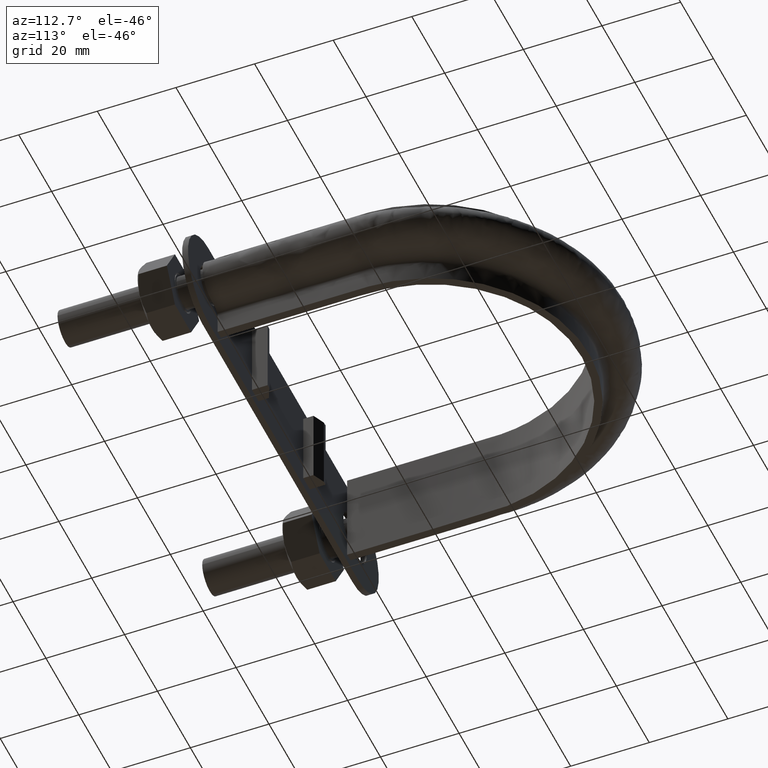
[diagram: clean part render]
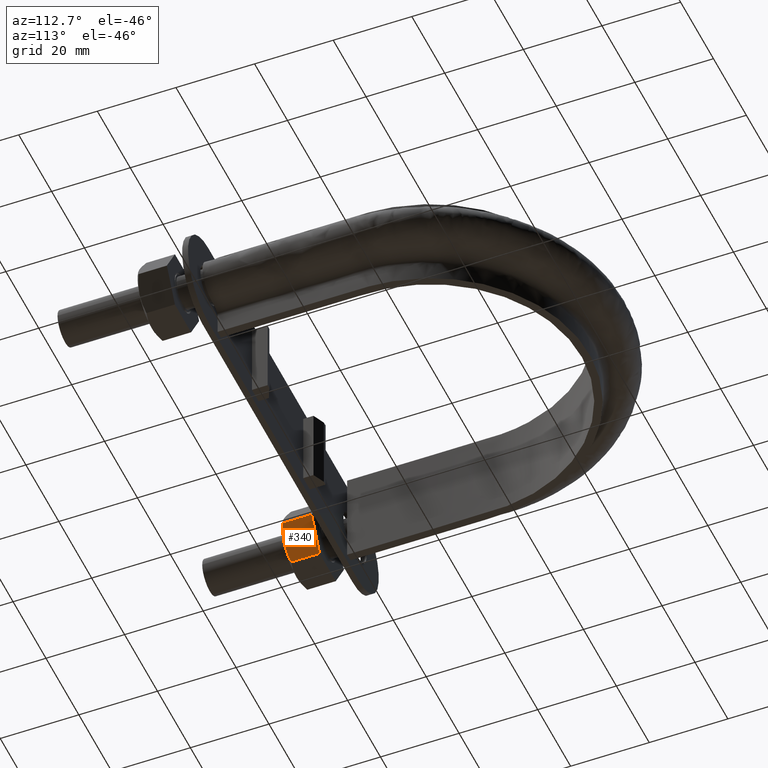
[diagram: same view with one face highlighted and labeled with its STEP entity id]
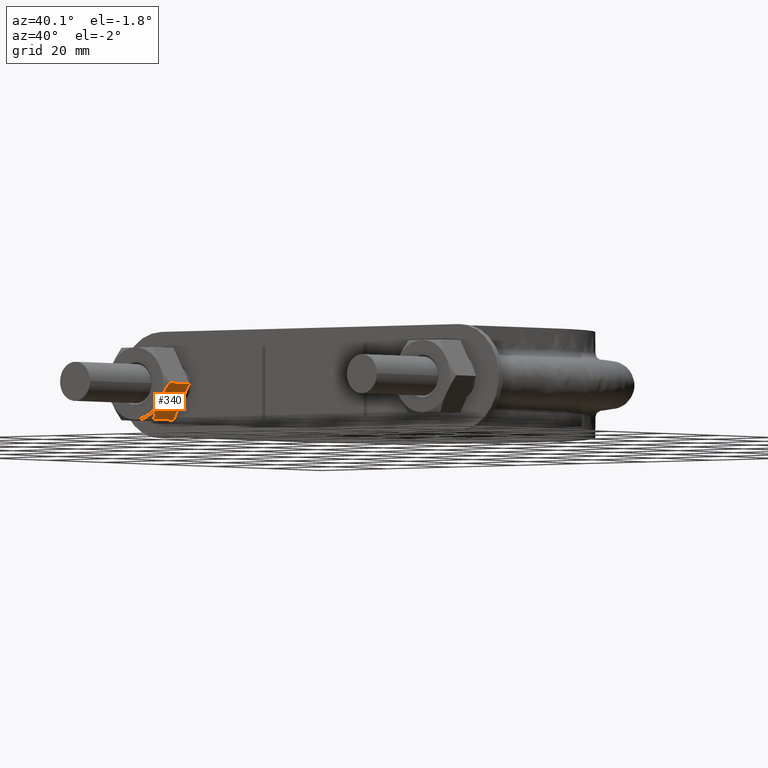
[diagram: same view with one face highlighted and labeled with its STEP entity id]
A machine part, auxiliary view. The second image highlights one B-rep face of the part: STEP entity #340.
A second angle (auxiliary view) of the same face is appended — the face is thin or edge-on in the first view.
In plain terms, the highlighted planar face has unit normal (-0.866, 0, 0.5).
Its self-contained STEP definition (entity closure, byte-faithful):
#340 = ADVANCED_FACE( '', ( #544 ), #545, .F. );
#544 = FACE_OUTER_BOUND( '', #1468, .T. );
#545 = PLANE( '', #1469 );
#1468 = EDGE_LOOP( '', ( #2078, #2079, #2080, #2081, #2082 ) );
#1469 = AXIS2_PLACEMENT_3D( '', #2083, #2084, #2085 );
#2078 = ORIENTED_EDGE( '', *, *, #2484, .F. );
#2079 = ORIENTED_EDGE( '', *, *, #2516, .F. );
#2080 = ORIENTED_EDGE( '', *, *, #2517, .F. );
#2081 = ORIENTED_EDGE( '', *, *, #2504, .F. );
#2082 = ORIENTED_EDGE( '', *, *, #2518, .F. );
#2083 = CARTESIAN_POINT( '', ( -34.1850454237805, 30.0000000000000, 3.85353532937499E-013 ) );
#2084 = DIRECTION( '', ( -0.866025403784458, 1.81492883563650E-016, 0.499999999999966 ) );
#2085 = DIRECTION( '', ( 2.09569930362945E-016, 1.00000000000000, 1.23259516440775E-032 ) );
#2484 = EDGE_CURVE( '', #2802, #2798, #2804, .T. );
#2504 = EDGE_CURVE( '', #2840, #2842, #2843, .T. );
#2516 = EDGE_CURVE( '', #2860, #2802, #2862, .T. );
#2517 = EDGE_CURVE( '', #2842, #2860, #2863, .T. );
#2518 = EDGE_CURVE( '', #2798, #2840, #2864, .F. );
#2798 = VERTEX_POINT( '', #3493 );
#2802 = VERTEX_POINT( '', #3502 );
#2804 = B_SPLINE_CURVE_WITH_KNOTS( '', 3, ( #3504, #3505, #3506, #3507, #3508, #3509 ), .UNSPECIFIED., .F., .F., ( 4, 2, 4 ), ( 3.46944695195361E-018, 0.00246745482903506, 0.00493490965807011 ), .UNSPECIFIED. );
#2840 = VERTEX_POINT( '', #3575 );
#2842 = VERTEX_POINT( '', #3577 );
#2843 = LINE( '', #3578, #3579 );
#2860 = VERTEX_POINT( '', #3601 );
#2862 = B_SPLINE_CURVE_WITH_KNOTS( '', 3, ( #3603, #3604, #3605, #3606, #3607, #3608 ), .UNSPECIFIED., .F., .F., ( 4, 2, 4 ), ( 2.81859202805183E-017, 0.00246745482903506, 0.00493490965807009 ), .UNSPECIFIED. );
#2863 = LINE( '', #3609, #3610 );
#2864 = LINE( '', #3611, #3612 );
#3493 = CARTESIAN_POINT( '', ( -34.2000343881849, 22.7505553499466, -0.0259616479009094 ) );
#3502 = CARTESIAN_POINT( '', ( -36.6387840678352, 22.0000000000004, -4.24999999999793 ) );
#3504 = CARTESIAN_POINT( '', ( -36.6387840678352, 22.0000000000004, -4.24999999999791 ) );
#3505 = CARTESIAN_POINT( '', ( -36.2227010927400, 22.0000000000004, -3.52932314696861 ) );
#3506 = CARTESIAN_POINT( '', ( -35.8121309439928, 22.0716504305294, -2.81819478926715 ) );
#3507 = CARTESIAN_POINT( '', ( -35.0000624800046, 22.3328582843709, -1.41165095041502 ) );
#3508 = CARTESIAN_POINT( '', ( -34.5984982144976, 22.5215585493658, -0.716121240052781 ) );
#3509 = CARTESIAN_POINT( '', ( -34.2000343881849, 22.7505553499466, -0.0259616479009426 ) );
#3575 = CARTESIAN_POINT( '', ( -34.2000343881849, 30.0000000000000, -0.0259616479008798 ) );
#3577 = CARTESIAN_POINT( '', ( -39.0775337474855, 30.0000000000000, -8.47403835209495 ) );
#3578 = CARTESIAN_POINT( '', ( -34.1887840678364, 30.0000000000000, -0.00647552145587905 ) );
#3579 = VECTOR( '', #4030, 1000.00000000000 );
#3601 = CARTESIAN_POINT( '', ( -39.0775337474855, 22.7505553499466, -8.47403835209493 ) );
#3603 = CARTESIAN_POINT( '', ( -39.0775337474855, 22.7505553499466, -8.47403835209490 ) );
#3604 = CARTESIAN_POINT( '', ( -38.6790699211729, 22.5215585493658, -7.78387875994307 ) );
#3605 = CARTESIAN_POINT( '', ( -38.2775056556658, 22.3328582843709, -7.08834904958078 ) );
#3606 = CARTESIAN_POINT( '', ( -37.4654371916776, 22.0716504305294, -5.68180521072866 ) );
#3607 = CARTESIAN_POINT( '', ( -37.0548670429304, 22.0000000000004, -4.97067685302721 ) );
#3608 = CARTESIAN_POINT( '', ( -36.6387840678352, 22.0000000000004, -4.24999999999791 ) );
#3609 = CARTESIAN_POINT( '', ( -39.0775337474855, 30.0000000000000, -8.47403835209495 ) );
#3610 = VECTOR( '', #4054, 1000.00000000000 );
#3611 = CARTESIAN_POINT( '', ( -34.2000343881849, 30.0000000000000, -0.0259616479008828 ) );
#3612 = VECTOR( '', #4055, 1000.00000000000 );
#4030 = DIRECTION( '', ( -0.499999999999966, 1.75487645984531E-016, -0.866025403784458 ) );
#4054 = DIRECTION( '', ( -2.44921270764476E-016, -1.00000000000000, -6.12303176911188E-017 ) );
#4055 = DIRECTION( '', ( -2.44921270764476E-016, -1.00000000000000, -6.12303176911188E-017 ) );